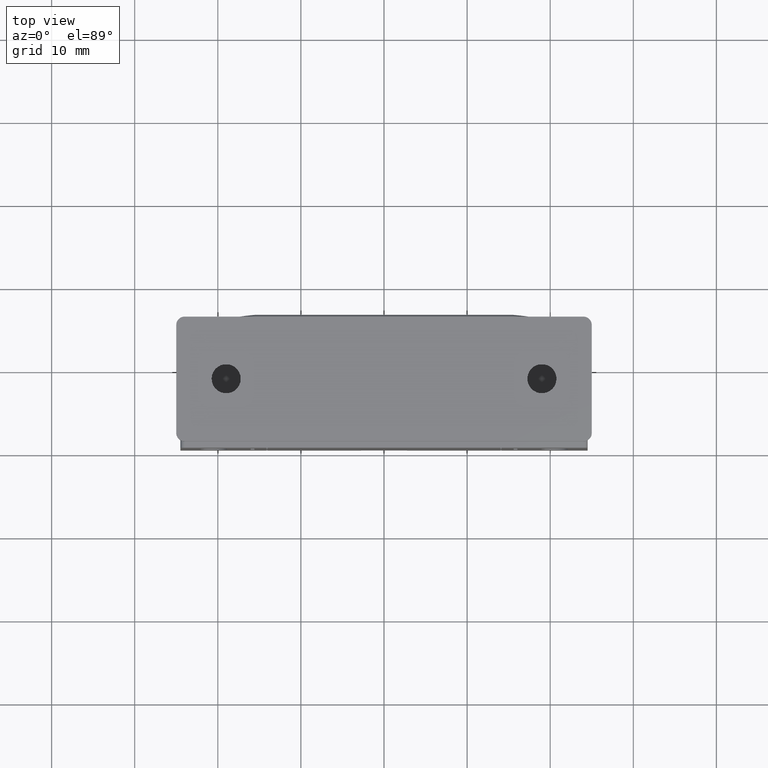
[diagram: clean part render]
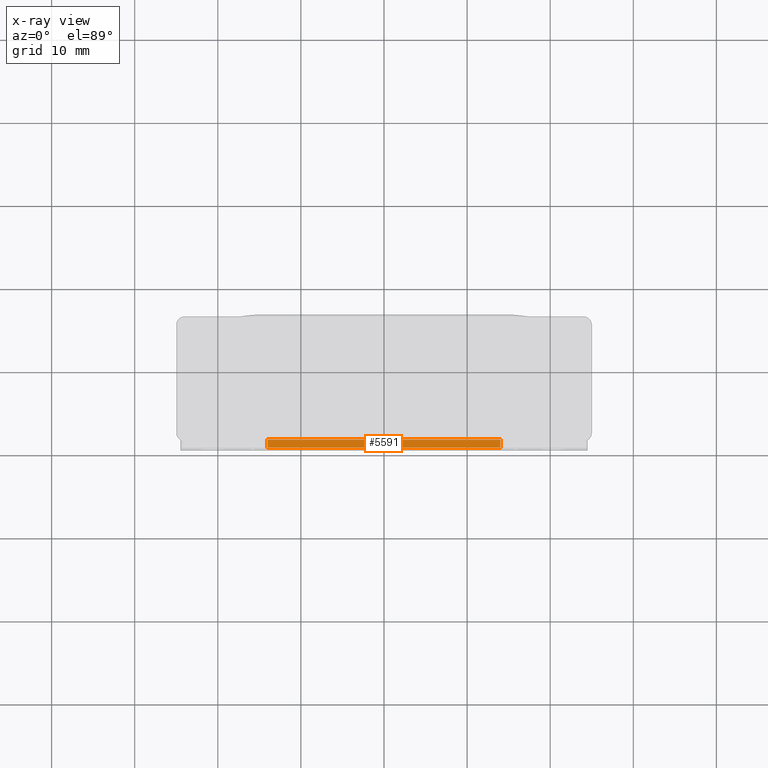
[diagram: x-ray — body ghosted, one internal face saturated and labeled with its STEP entity id]
A machine part, top view, then the same camera in x-ray: the body is ghosted and one INTERNAL B-rep face — a face not visible from any outside direction — is saturated and labeled: STEP entity #5591.
In plain terms, the highlighted planar face has unit normal (0, 0, 1).
Its self-contained STEP definition (entity closure, byte-faithful):
#330 = DIRECTION ( 'NONE',  ( 0.0000000000000000000, -1.000000000000000000, 0.0000000000000000000 ) ) ;
#421 = CARTESIAN_POINT ( 'NONE',  ( 14.00000000000000200, 1.000000000000000000, 8.999999999999998200 ) ) ;
#513 = VERTEX_POINT ( 'NONE', #2734 ) ;
#516 = VECTOR ( 'NONE', #3072, 1000.000000000000000 ) ;
#886 = CARTESIAN_POINT ( 'NONE',  ( -14.00000000000000000, 0.0000000000000000000, 9.000000000000001800 ) ) ;
#1133 = PLANE ( 'NONE',  #4134 ) ;
#1253 = LINE ( 'NONE', #1586, #6439 ) ;
#1486 = CARTESIAN_POINT ( 'NONE',  ( 14.00000000000000200, 1.000000000000000000, 8.999999999999998200 ) ) ;
#1564 = EDGE_CURVE ( 'NONE', #3993, #513, #2056, .T. ) ;
#1586 = CARTESIAN_POINT ( 'NONE',  ( 14.00000000000000200, 1.000000000000000000, 8.999999999999998200 ) ) ;
#1966 = VERTEX_POINT ( 'NONE', #886 ) ;
#2056 = LINE ( 'NONE', #421, #3390 ) ;
#2085 = VECTOR ( 'NONE', #6367, 1000.000000000000000 ) ;
#2102 = ORIENTED_EDGE ( 'NONE', *, *, #1564, .F. ) ;
#2157 = DIRECTION ( 'NONE',  ( 1.000000000000000000, 0.0000000000000000000, -1.239088197126290800E-016 ) ) ;
#2207 = EDGE_CURVE ( 'NONE', #3993, #5671, #1253, .T. ) ;
#2734 = CARTESIAN_POINT ( 'NONE',  ( 14.00000000000000200, 0.0000000000000000000, 8.999999999999998200 ) ) ;
#2863 = CARTESIAN_POINT ( 'NONE',  ( 14.00000000000000200, 0.0000000000000000000, 8.999999999999998200 ) ) ;
#2907 = EDGE_LOOP ( 'NONE', ( #5243, #2102, #5837, #4601 ) ) ;
#3072 = DIRECTION ( 'NONE',  ( 0.0000000000000000000, -1.000000000000000000, 0.0000000000000000000 ) ) ;
#3390 = VECTOR ( 'NONE', #330, 1000.000000000000000 ) ;
#3455 = EDGE_CURVE ( 'NONE', #5671, #1966, #5715, .T. ) ;
#3497 = FACE_OUTER_BOUND ( 'NONE', #2907, .T. ) ;
#3993 = VERTEX_POINT ( 'NONE', #1486 ) ;
#4134 = AXIS2_PLACEMENT_3D ( 'NONE', #4632, #5148, #2157 ) ;
#4601 = ORIENTED_EDGE ( 'NONE', *, *, #3455, .T. ) ;
#4632 = CARTESIAN_POINT ( 'NONE',  ( 14.00000000000000200, 1.000000000000000000, 8.999999999999998200 ) ) ;
#4726 = LINE ( 'NONE', #2863, #2085 ) ;
#5080 = DIRECTION ( 'NONE',  ( -1.000000000000000000, 0.0000000000000000000, 1.239088197126290600E-016 ) ) ;
#5148 = DIRECTION ( 'NONE',  ( 1.239088197126290800E-016, 0.0000000000000000000, 1.000000000000000000 ) ) ;
#5243 = ORIENTED_EDGE ( 'NONE', *, *, #5845, .F. ) ;
#5579 = CARTESIAN_POINT ( 'NONE',  ( -14.00000000000000000, 1.000000000000000000, 9.000000000000001800 ) ) ;
#5591 = ADVANCED_FACE ( 'NONE', ( #3497 ), #1133, .T. ) ;
#5671 = VERTEX_POINT ( 'NONE', #5729 ) ;
#5715 = LINE ( 'NONE', #5579, #516 ) ;
#5729 = CARTESIAN_POINT ( 'NONE',  ( -14.00000000000000000, 1.000000000000000000, 9.000000000000001800 ) ) ;
#5837 = ORIENTED_EDGE ( 'NONE', *, *, #2207, .T. ) ;
#5845 = EDGE_CURVE ( 'NONE', #513, #1966, #4726, .T. ) ;
#6367 = DIRECTION ( 'NONE',  ( -1.000000000000000000, 0.0000000000000000000, 1.239088197126290600E-016 ) ) ;
#6439 = VECTOR ( 'NONE', #5080, 1000.000000000000000 ) ;